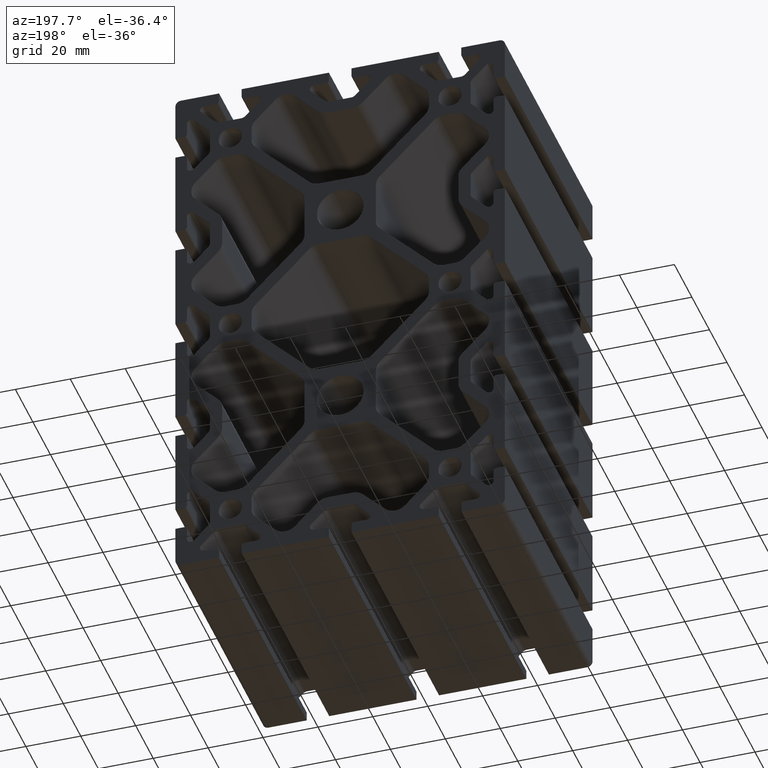
[diagram: clean part render]
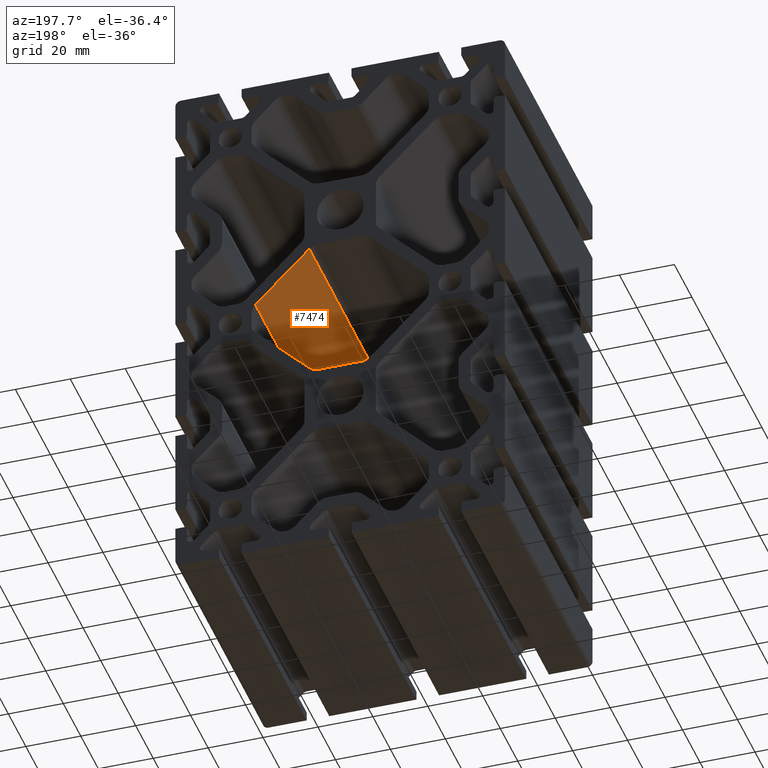
[diagram: same view with one face highlighted and labeled with its STEP entity id]
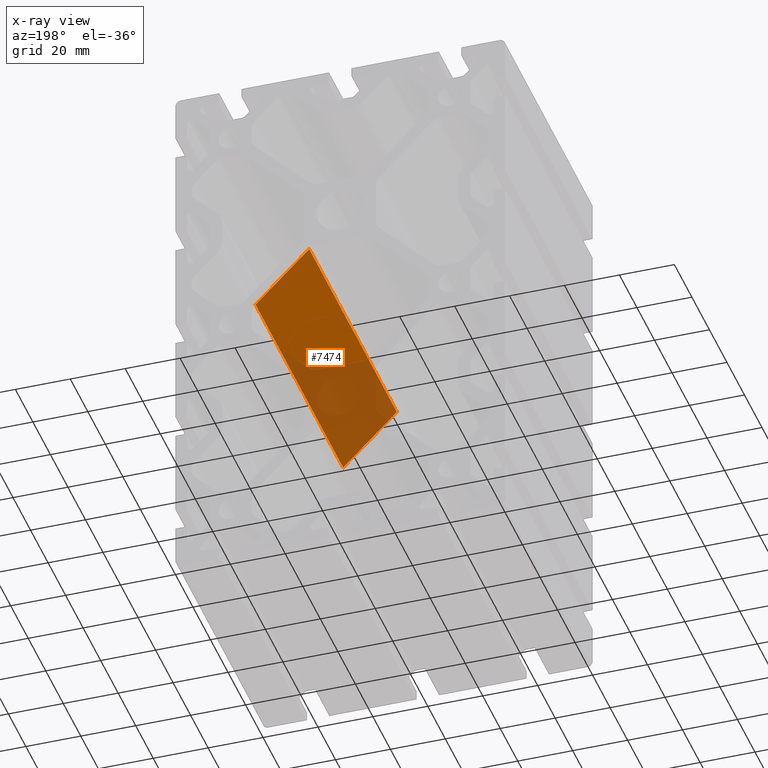
[diagram: x-ray of the same camera — body ghosted, the highlighted face saturated]
A machine part, auxiliary view. The second image highlights one B-rep face of the part: STEP entity #7474.
The next image is the same camera in x-ray: the body ghosted, the highlighted face saturated — about 47% of this face is hidden behind the body in this view.
In plain terms, the highlighted planar face has unit normal (0.7071, 0, 0.7071).
Its self-contained STEP definition (entity closure, byte-faithful):
#520=LINE('',#12057,#1288);
#521=LINE('',#12061,#1289);
#522=LINE('',#12063,#1290);
#523=LINE('',#12064,#1291);
#1288=VECTOR('',#9810,100.);
#1289=VECTOR('',#9815,27.6521861300698);
#1290=VECTOR('',#9816,100.);
#1291=VECTOR('',#9817,27.6521861300698);
#1682=PLANE('',#8090);
#2040=FACE_OUTER_BOUND('',#2425,.T.);
#2425=EDGE_LOOP('',(#5791,#5792,#5793,#5794));
#3437=VERTEX_POINT('',#12054);
#3438=VERTEX_POINT('',#12056);
#3439=VERTEX_POINT('',#12060);
#3440=VERTEX_POINT('',#12062);
#4429=EDGE_CURVE('',#3437,#3438,#520,.T.);
#4431=EDGE_CURVE('',#3439,#3437,#521,.T.);
#4432=EDGE_CURVE('',#3439,#3440,#522,.T.);
#4433=EDGE_CURVE('',#3440,#3438,#523,.T.);
#5791=ORIENTED_EDGE('',*,*,#4431,.F.);
#5792=ORIENTED_EDGE('',*,*,#4432,.T.);
#5793=ORIENTED_EDGE('',*,*,#4433,.T.);
#5794=ORIENTED_EDGE('',*,*,#4429,.F.);
#7474=ADVANCED_FACE('',(#2040),#1682,.F.);
#8090=AXIS2_PLACEMENT_3D('',#12059,#9813,#9814);
#9810=DIRECTION('',(0.,1.,0.));
#9813=DIRECTION('center_axis',(0.707106781186549,0.,0.707106781186546));
#9814=DIRECTION('ref_axis',(0.707106781186546,0.,-0.707106781186549));
#9815=DIRECTION('',(0.707106781186546,0.,-0.707106781186549));
#9816=DIRECTION('',(0.,1.,0.));
#9817=DIRECTION('',(0.707106781186546,0.,-0.707106781186549));
#12054=CARTESIAN_POINT('',(30.8355339059327,0.,5.98248557872781));
#12056=CARTESIAN_POINT('',(30.8355339059327,100.,5.98248557872781));
#12057=CARTESIAN_POINT('',(30.8355339059327,0.,5.98248557872781));
#12059=CARTESIAN_POINT('Origin',(11.2824855787278,0.,25.5355339059327));
#12060=CARTESIAN_POINT('',(11.2824855787278,0.,25.5355339059327));
#12061=CARTESIAN_POINT('',(11.2824855787278,0.,25.5355339059327));
#12062=CARTESIAN_POINT('',(11.2824855787278,100.,25.5355339059328));
#12063=CARTESIAN_POINT('',(11.2824855787278,0.,25.5355339059327));
#12064=CARTESIAN_POINT('',(11.2824855787278,100.,25.5355339059327));